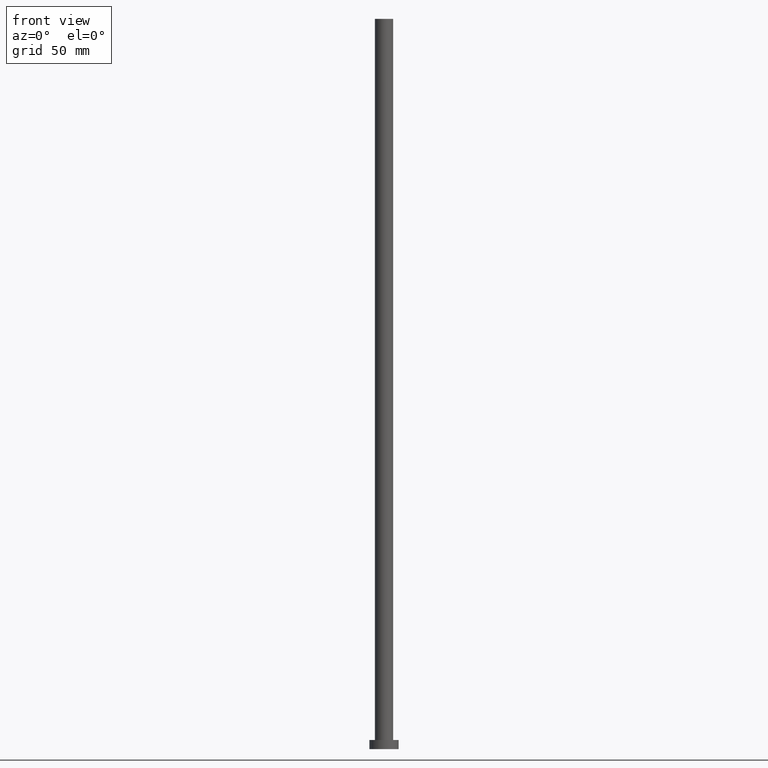
[diagram: clean part render]
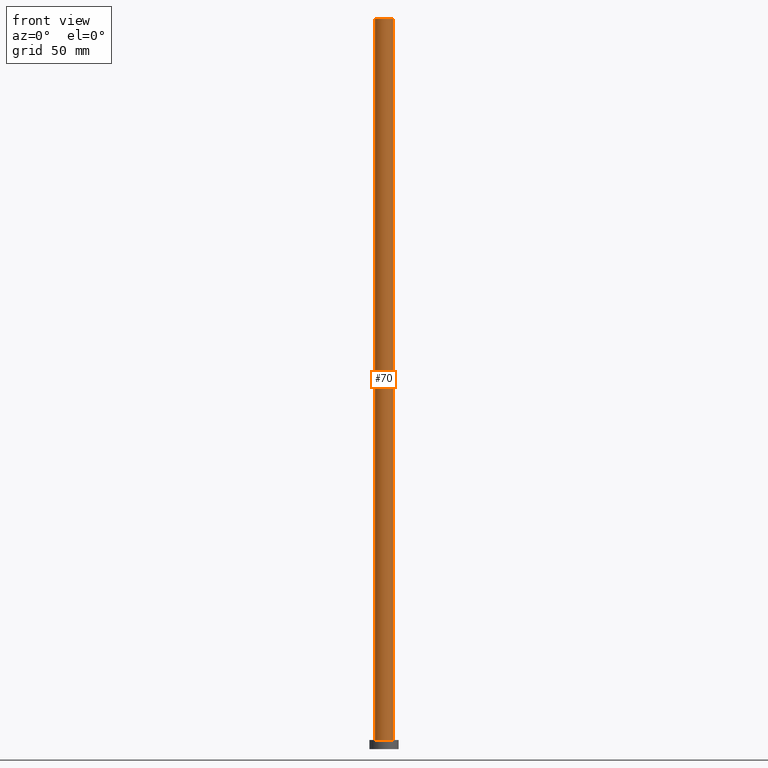
[diagram: same view with one face highlighted and labeled with its STEP entity id]
A machine part, front view. The second image highlights one B-rep face of the part: STEP entity #70.
In plain terms, the highlighted cylindrical surface (edge-blend (fillet) strip) has radius 5 mm, axis along (-0, -0, -1).
Its self-contained STEP definition (entity closure, byte-faithful):
#6 = VERTEX_POINT ( 'NONE', #255 ) ;
#8 = CARTESIAN_POINT ( 'NONE',  ( 5.000000000000000888, 6.123233995736766282E-16, 400.0000000000000000 ) ) ;
#16 = FACE_OUTER_BOUND ( 'NONE', #153, .T. ) ;
#19 = EDGE_CURVE ( 'NONE', #156, #93, #97, .T. ) ;
#26 = AXIS2_PLACEMENT_3D ( 'NONE', #136, #61, #104 ) ;
#31 = AXIS2_PLACEMENT_3D ( 'NONE', #68, #218, #167 ) ;
#39 = EDGE_CURVE ( 'NONE', #93, #88, #130, .T. ) ;
#42 = CIRCLE ( 'NONE', #31, 5.000000000000000888 ) ;
#56 = ORIENTED_EDGE ( 'NONE', *, *, #102, .T. ) ;
#59 = CARTESIAN_POINT ( 'NONE',  ( 5.000000000000000888, 6.123233995736766282E-16, 5.000000000000000000 ) ) ;
#61 = DIRECTION ( 'NONE',  ( -0.000000000000000000, -0.000000000000000000, -1.000000000000000000 ) ) ;
#68 = CARTESIAN_POINT ( 'NONE',  ( 0.000000000000000000, 0.000000000000000000, 5.000000000000000000 ) ) ;
#70 = ADVANCED_FACE ( 'NONE', ( #16 ), #171, .T. ) ;
#72 = ORIENTED_EDGE ( 'NONE', *, *, #39, .F. ) ;
#80 = DIRECTION ( 'NONE',  ( 0.000000000000000000, 0.000000000000000000, 1.000000000000000000 ) ) ;
#83 = VECTOR ( 'NONE', #96, 1000.000000000000000 ) ;
#88 = VERTEX_POINT ( 'NONE', #59 ) ;
#93 = VERTEX_POINT ( 'NONE', #8 ) ;
#96 = DIRECTION ( 'NONE',  ( -0.000000000000000000, -0.000000000000000000, -1.000000000000000000 ) ) ;
#97 = CIRCLE ( 'NONE', #217, 5.000000000000000888 ) ;
#102 = EDGE_CURVE ( 'NONE', #156, #6, #134, .T. ) ;
#104 = DIRECTION ( 'NONE',  ( -1.000000000000000000, 0.000000000000000000, 0.000000000000000000 ) ) ;
#119 = ORIENTED_EDGE ( 'NONE', *, *, #19, .F. ) ;
#130 = LINE ( 'NONE', #194, #164 ) ;
#134 = LINE ( 'NONE', #229, #83 ) ;
#136 = CARTESIAN_POINT ( 'NONE',  ( 0.000000000000000000, 0.000000000000000000, 400.0000000000000000 ) ) ;
#153 = EDGE_LOOP ( 'NONE', ( #72, #119, #56, #246 ) ) ;
#156 = VERTEX_POINT ( 'NONE', #178 ) ;
#160 = DIRECTION ( 'NONE',  ( 1.000000000000000000, 0.000000000000000000, 0.000000000000000000 ) ) ;
#163 = EDGE_CURVE ( 'NONE', #6, #88, #42, .T. ) ;
#164 = VECTOR ( 'NONE', #234, 1000.000000000000000 ) ;
#167 = DIRECTION ( 'NONE',  ( 1.000000000000000000, 0.000000000000000000, 0.000000000000000000 ) ) ;
#171 = CYLINDRICAL_SURFACE ( 'NONE', #26, 5.000000000000000888 ) ;
#178 = CARTESIAN_POINT ( 'NONE',  ( -5.000000000000000888, 0.000000000000000000, 400.0000000000000000 ) ) ;
#194 = CARTESIAN_POINT ( 'NONE',  ( 5.000000000000000888, 6.123233995736766282E-16, 400.0000000000000000 ) ) ;
#217 = AXIS2_PLACEMENT_3D ( 'NONE', #249, #80, #160 ) ;
#218 = DIRECTION ( 'NONE',  ( 0.000000000000000000, 0.000000000000000000, 1.000000000000000000 ) ) ;
#229 = CARTESIAN_POINT ( 'NONE',  ( -5.000000000000000888, 0.000000000000000000, 400.0000000000000000 ) ) ;
#234 = DIRECTION ( 'NONE',  ( -0.000000000000000000, -0.000000000000000000, -1.000000000000000000 ) ) ;
#246 = ORIENTED_EDGE ( 'NONE', *, *, #163, .T. ) ;
#249 = CARTESIAN_POINT ( 'NONE',  ( 0.000000000000000000, 0.000000000000000000, 400.0000000000000000 ) ) ;
#255 = CARTESIAN_POINT ( 'NONE',  ( -5.000000000000000888, 0.000000000000000000, 5.000000000000000000 ) ) ;